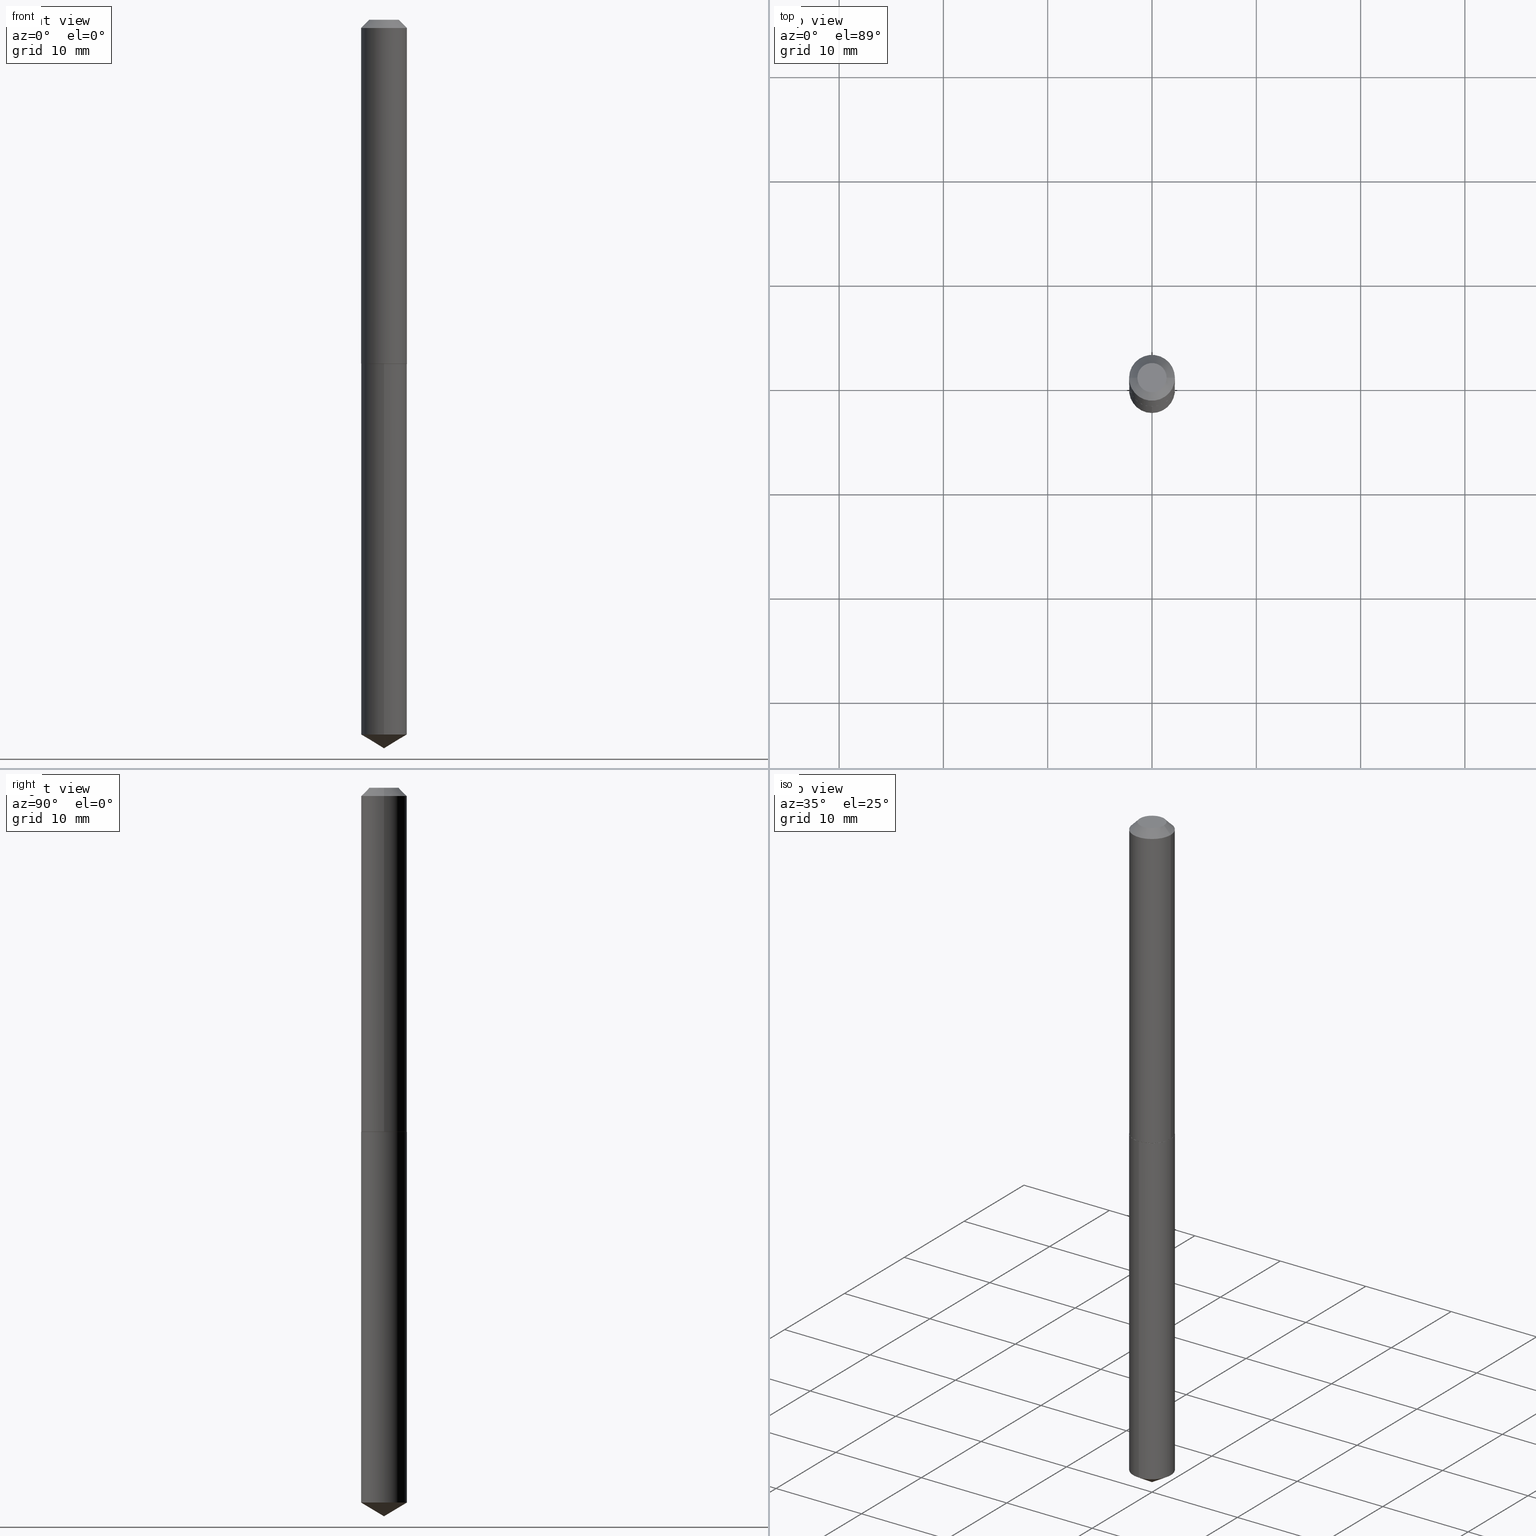
[diagram: canonical four-view strip — front | top / right | iso, engineering-drawing reading convention]
A machine part, canonical four-view strip (front | top / right | iso — engineering-drawing reading convention). The complete STEP part file that produces these views, byte-faithful:
ISO-10303-21;
HEADER;
FILE_DESCRIPTION (( 'STEP AP203' ),
    '1' );
FILE_NAME ('57150.STEP',
    '2024-04-22T22:58:40',
    ( '' ),
    ( '' ),
    'SwSTEP 2.0',
    'SolidWorks 2023',
    '' );
FILE_SCHEMA (( 'CONFIG_CONTROL_DESIGN' ));
ENDSEC;

DATA;
#1 = EDGE_CURVE ( 'NONE', #365, #335, #51, .T. ) ;
#2 = CARTESIAN_POINT ( 'NONE',  ( -1.647159550250112677E-48, 2.351707295243311413E-34, 6.735557395310372836E-20 ) ) ;
#3 = VECTOR ( 'NONE', #268, 39.37007874015748854 ) ;
#4 = DIRECTION ( 'NONE',  ( -2.445468806185136597E-29, 3.491481338843145583E-15, 1.000000000000000000 ) ) ;
#5 = ORIENTED_EDGE ( 'NONE', *, *, #255, .T. ) ;
#6 = FACE_OUTER_BOUND ( 'NONE', #157, .T. ) ;
#7 = VERTEX_POINT ( 'NONE', #257 ) ;
#8 =( CONVERSION_BASED_UNIT ( 'INCH', #307 ) LENGTH_UNIT ( ) NAMED_UNIT ( #299 ) );
#9 = DESIGN_CONTEXT ( 'detailed design', #186, 'design' ) ;
#10 = ORIENTED_EDGE ( 'NONE', *, *, #1, .F. ) ;
#11 = DIRECTION ( 'NONE',  ( -2.445468806185136597E-29, 3.491481338843145583E-15, 1.000000000000000000 ) ) ;
#12 = VECTOR ( 'NONE', #64, 39.37007874015748143 ) ;
#13 = LOCAL_TIME ( 18, 58, 40.00000000000000000, #354 ) ;
#14 = ORIENTED_EDGE ( 'NONE', *, *, #172, .F. ) ;
#15 = APPLICATION_CONTEXT ( 'configuration controlled 3d designs of mechanical parts and assemblies' ) ;
#16 = CARTESIAN_POINT ( 'NONE',  ( 3.174218510428307267E-29, -4.531942777818403125E-15, -1.297999999999999821 ) ) ;
#17 = CARTESIAN_POINT ( 'NONE',  ( 0.08600000000000025679, -5.132477568099423229E-15, -1.297999999999999821 ) ) ;
#18 = DIRECTION ( 'NONE',  ( 1.000000000000000000, -6.982962677686266711E-15, 0.000000000000000000 ) ) ;
#19 = CARTESIAN_POINT ( 'NONE',  ( 0.05524999999999998662, -5.407921915114817102E-16, 6.735557395634301012E-20 ) ) ;
#20 = DIRECTION ( 'NONE',  ( 2.445468806185136597E-29, -3.491481338843145583E-15, -1.000000000000000000 ) ) ;
#21 = DIRECTION ( 'NONE',  ( -2.445533427585269840E-29, 3.491388797320132949E-15, 1.000000000000000000 ) ) ;
#22 = AXIS2_PLACEMENT_3D ( 'NONE', #192, #185, #358 ) ;
#23 = APPROVAL_STATUS ( 'not_yet_approved' ) ;
#24 = FACE_OUTER_BOUND ( 'NONE', #155, .T. ) ;
#25 = PERSON_AND_ORGANIZATION_ROLE ( 'classification_officer' ) ;
#26 = DIRECTION ( 'NONE',  ( -2.445533427585270120E-29, 3.491388797320133343E-15, 1.000000000000000000 ) ) ;
#27 = EDGE_CURVE ( 'NONE', #193, #236, #219, .T. ) ;
#28 = CLOSED_SHELL ( 'NONE', ( #80, #179, #385, #278, #87, #246, #102, #111 ) ) ;
#29 = CONICAL_SURFACE ( 'NONE', #284, 0.08650000000000014622, 0.7853981633974311816 ) ;
#30 = APPROVAL_DATE_TIME ( #91, #248 ) ;
#31 = DIRECTION ( 'NONE',  ( 1.000000000000000000, 0.000000000000000000, 0.000000000000000000 ) ) ;
#32 = CIRCLE ( 'NONE', #159, 0.05524999999999998662 ) ;
#33 = APPROVAL_PERSON_ORGANIZATION ( #381, #248, #237 ) ;
#34 = ORIENTED_EDGE ( 'NONE', *, *, #311, .T. ) ;
#35 = DIRECTION ( 'NONE',  ( -2.445468806185136597E-29, 3.491481338843145583E-15, 1.000000000000000000 ) ) ;
#36 = ORIENTED_EDGE ( 'NONE', *, *, #302, .F. ) ;
#37 = EDGE_CURVE ( 'NONE', #127, #103, #374, .T. ) ;
#38 = ORIENTED_EDGE ( 'NONE', *, *, #27, .F. ) ;
#39 = ORIENTED_EDGE ( 'NONE', *, *, #211, .F. ) ;
#40 = CC_DESIGN_PERSON_AND_ORGANIZATION_ASSIGNMENT ( #318, #384, ( #182 ) ) ;
#41 = ORIENTED_EDGE ( 'NONE', *, *, #325, .F. ) ;
#42 = LINE ( 'NONE', #254, #242 ) ;
#43 = DIRECTION ( 'NONE',  ( -2.445533427585269840E-29, 3.491388797320132949E-15, 1.000000000000000000 ) ) ;
#44 = CONICAL_SURFACE ( 'NONE', #265, 0.08649999999999997968, 0.7853981633974452814 ) ;
#45 = APPROVAL ( #23, 'UNSPECIFIED' ) ;
#46 = DIRECTION ( 'NONE',  ( -6.982962677686267499E-15, -1.000000000000000000, 3.468864327941581987E-15 ) ) ;
#47 = CARTESIAN_POINT ( 'NONE',  ( 7.642090019328599159E-31, -1.091087918388489774E-16, -0.03125000000000019429 ) ) ;
#48 = ADVANCED_BREP_SHAPE_REPRESENTATION ( '57150', ( #324, #327, #194 ), #134 ) ;
#49 = FACE_OUTER_BOUND ( 'NONE', #339, .T. ) ;
#50 = CARTESIAN_POINT ( 'NONE',  ( -8.235797751250563386E-49, 1.175853647621655706E-34, 3.367778697655186418E-20 ) ) ;
#51 = CIRCLE ( 'NONE', #104, 0.05524999999999998662 ) ;
#52 = PERSON_AND_ORGANIZATION ( #191, #259 ) ;
#53 = SECURITY_CLASSIFICATION_LEVEL ( 'unclassified' ) ;
#54 = EDGE_CURVE ( 'NONE', #125, #127, #81, .T. ) ;
#55 = PERSON_AND_ORGANIZATION ( #191, #259 ) ;
#56 = CARTESIAN_POINT ( 'NONE',  ( 3.174218510428307267E-29, -4.531942777818403125E-15, -1.297999999999999821 ) ) ;
#57 = LINE ( 'NONE', #270, #303 ) ;
#58 = VECTOR ( 'NONE', #289, 39.37007874015748854 ) ;
#59 = AXIS2_PLACEMENT_3D ( 'NONE', #171, #109, #138 ) ;
#60 = CYLINDRICAL_SURFACE ( 'NONE', #361, 0.08650000000000004907 ) ;
#61 = EDGE_CURVE ( 'NONE', #301, #127, #173, .T. ) ;
#62 = ORIENTED_EDGE ( 'NONE', *, *, #311, .F. ) ;
#63 = EDGE_LOOP ( 'NONE', ( #101, #306, #38, #166 ) ) ;
#64 = DIRECTION ( 'NONE',  ( -0.7071067811865453523, 2.468850131082234184E-15, -0.7071067811865496822 ) ) ;
#65 = ORIENTED_EDGE ( 'NONE', *, *, #54, .F. ) ;
#66 = CC_DESIGN_PERSON_AND_ORGANIZATION_ASSIGNMENT ( #234, #147, ( #144 ) ) ;
#67 = AXIS2_PLACEMENT_3D ( 'NONE', #135, #312, #280 ) ;
#68 = ORIENTED_EDGE ( 'NONE', *, *, #167, .T. ) ;
#69 = ORIENTED_EDGE ( 'NONE', *, *, #368, .T. ) ;
#70 = APPLICATION_PROTOCOL_DEFINITION ( 'international standard', 'config_control_design', 1994, #15 ) ;
#71 = EDGE_CURVE ( 'NONE', #7, #236, #201, .T. ) ;
#72 = ORIENTED_EDGE ( 'NONE', *, *, #293, .F. ) ;
#73 = DIRECTION ( 'NONE',  ( -6.982962677686267499E-15, -1.000000000000000000, 3.468864327941581987E-15 ) ) ;
#74 = AXIS2_PLACEMENT_3D ( 'NONE', #245, #362, #222 ) ;
#75 = CARTESIAN_POINT ( 'NONE',  ( 6.598027808210516184E-29, -9.419976321584187663E-15, -2.698025556454116014 ) ) ;
#76 = CARTESIAN_POINT ( 'NONE',  ( 0.08650000000000004907, -6.040262716198624215E-16, 4.217892911063486815E-30 ) ) ;
#77 = DIRECTION ( 'NONE',  ( -0.7071067811865353603, 7.493145998870309984E-15, 0.7071067811865595631 ) ) ;
#78 = FACE_OUTER_BOUND ( 'NONE', #198, .T. ) ;
#79 = APPROVAL_ROLE ( '' ) ;
#80 = ADVANCED_FACE ( 'NONE', ( #338 ), #44, .T. ) ;
#81 = CIRCLE ( 'NONE', #317, 0.08650000000000014622 ) ;
#82 = DIRECTION ( 'NONE',  ( 1.000000000000000000, -6.982962677686266711E-15, 4.876185272392807362E-29 ) ) ;
#83 = CC_DESIGN_APPROVAL ( #45, ( #144 ) ) ;
#84 = APPLICATION_PROTOCOL_DEFINITION ( 'international standard', 'config_control_design', 1994, #186 ) ;
#85 = APPROVAL_ROLE ( '' ) ;
#86 = DIRECTION ( 'NONE',  ( 6.982962677686265922E-15, 1.000000000000000000, -3.491388797320133343E-15 ) ) ;
#87 = ADVANCED_FACE ( 'NONE', ( #146 ), #153, .T. ) ;
#88 = CARTESIAN_POINT ( 'NONE',  ( 6.725218396891717111E-29, -9.601319192630365707E-15, -2.750000000000000000 ) ) ;
#89 = AXIS2_PLACEMENT_3D ( 'NONE', #56, #292, #379 ) ;
#90 = LOCAL_TIME ( 18, 58, 40.00000000000000000, #148 ) ;
#91 = DATE_AND_TIME ( #178, #119 ) ;
#92 = CYLINDRICAL_SURFACE ( 'NONE', #383, 0.08650000000000004907 ) ;
#93 = CARTESIAN_POINT ( 'NONE',  ( -6.040262716197958614E-16, -0.08650000000000938882, -2.698025556454115570 ) ) ;
#94 = DIRECTION ( 'NONE',  ( 0.7071067811865453523, -7.319954787623248157E-15, -0.7071067811865496822 ) ) ;
#95 = EDGE_CURVE ( 'NONE', #103, #188, #97, .T. ) ;
#96 = EDGE_LOOP ( 'NONE', ( #10, #162, #360, #39 ) ) ;
#97 = CIRCLE ( 'NONE', #208, 0.08649999999999997968 ) ;
#98 = CC_DESIGN_APPROVAL ( #248, ( #276 ) ) ;
#99 = LINE ( 'NONE', #161, #296 ) ;
#100 = ORIENTED_EDGE ( 'NONE', *, *, #61, .F. ) ;
#101 = ORIENTED_EDGE ( 'NONE', *, *, #325, .T. ) ;
#102 = ADVANCED_FACE ( 'NONE', ( #24 ), #168, .T. ) ;
#103 = VERTEX_POINT ( 'NONE', #348 ) ;
#104 = AXIS2_PLACEMENT_3D ( 'NONE', #349, #309, #82 ) ;
#105 = CARTESIAN_POINT ( 'NONE',  ( 3.174218510428307267E-29, -4.531942777818403125E-15, -1.297999999999999821 ) ) ;
#106 = DIRECTION ( 'NONE',  ( -1.000000000000000000, 6.982962677686266711E-15, 0.000000000000000000 ) ) ;
#107 = DIRECTION ( 'NONE',  ( -1.000000000000000000, 6.982962677686266711E-15, 0.000000000000000000 ) ) ;
#108 = ORIENTED_EDGE ( 'NONE', *, *, #61, .T. ) ;
#109 = DIRECTION ( 'NONE',  ( -2.445468806185136597E-29, 3.491481338843145583E-15, 1.000000000000000000 ) ) ;
#110 = CARTESIAN_POINT ( 'NONE',  ( 0.08650000000000014622, -5.134223308768844733E-15, -1.297500000000000098 ) ) ;
#111 = ADVANCED_FACE ( 'NONE', ( #78 ), #206, .F. ) ;
#112 = DIRECTION ( 'NONE',  ( -5.985567269335949168E-15, -0.8571673007021112234, 0.5150380749100558209 ) ) ;
#113 = AXIS2_PLACEMENT_3D ( 'NONE', #344, #261, #106 ) ;
#114 = DIRECTION ( 'NONE',  ( 1.000000000000000000, -6.982962677686270655E-15, 0.000000000000000000 ) ) ;
#115 = APPROVAL ( #210, 'UNSPECIFIED' ) ;
#116 = APPROVAL_STATUS ( 'not_yet_approved' ) ;
#117 = FACE_OUTER_BOUND ( 'NONE', #364, .T. ) ;
#118 = CIRCLE ( 'NONE', #310, 0.08649999999999997968 ) ;
#119 = LOCAL_TIME ( 18, 58, 40.00000000000000000, #386 ) ;
#120 = SHAPE_DEFINITION_REPRESENTATION ( #180, #48 ) ;
#121 = CC_DESIGN_PERSON_AND_ORGANIZATION_ASSIGNMENT ( #291, #264, ( #345 ) ) ;
#122 = DATE_TIME_ROLE ( 'creation_date' ) ;
#123 = LINE ( 'NONE', #241, #258 ) ;
#124 = AXIS2_PLACEMENT_3D ( 'NONE', #316, #21, #175 ) ;
#125 = VERTEX_POINT ( 'NONE', #336 ) ;
#126 = CYLINDRICAL_SURFACE ( 'NONE', #74, 0.08649999999999997968 ) ;
#127 = VERTEX_POINT ( 'NONE', #196 ) ;
#128 = AXIS2_PLACEMENT_3D ( 'NONE', #16, #11, #343 ) ;
#129 = DIRECTION ( 'NONE',  ( 1.000000000000000000, -6.982962677686266711E-15, 4.876185272392807362E-29 ) ) ;
#130 = DIRECTION ( 'NONE',  ( -2.445468806185136877E-29, 3.491481338843145188E-15, 1.000000000000000000 ) ) ;
#131 = EDGE_LOOP ( 'NONE', ( #62, #226, #108, #65 ) ) ;
#132 = VERTEX_POINT ( 'NONE', #253 ) ;
#133 = CONICAL_SURFACE ( 'NONE', #352, 65.52281426576865897, 1.029744258676656088 ) ;
#134 =( GEOMETRIC_REPRESENTATION_CONTEXT ( 3 ) GLOBAL_UNCERTAINTY_ASSIGNED_CONTEXT ( ( #150 ) ) GLOBAL_UNIT_ASSIGNED_CONTEXT ( ( #8, #165, #366 ) ) REPRESENTATION_CONTEXT ( 'NONE', 'WORKASPACE' ) );
#135 = CARTESIAN_POINT ( 'NONE',  ( 3.174218510428307267E-29, -4.531942777818403125E-15, -1.297999999999999821 ) ) ;
#136 = ADVANCED_FACE ( 'NONE', ( #369 ), #235, .F. ) ;
#137 = FACE_OUTER_BOUND ( 'NONE', #63, .T. ) ;
#138 = DIRECTION ( 'NONE',  ( 1.000000000000000000, -6.982962677686266711E-15, 0.000000000000000000 ) ) ;
#139 = ORIENTED_EDGE ( 'NONE', *, *, #293, .T. ) ;
#140 = CARTESIAN_POINT ( 'NONE',  ( -0.08650000000000014622, -3.915577570716494020E-15, -1.297500000000000098 ) ) ;
#141 = CIRCLE ( 'NONE', #22, 0.08650000000000014622 ) ;
#142 = DIRECTION ( 'NONE',  ( -2.445468806185136877E-29, 3.491481338843145188E-15, 1.000000000000000000 ) ) ;
#143 = APPROVAL_PERSON_ORGANIZATION ( #320, #115, #79 ) ;
#144 = PRODUCT_DEFINITION ( 'UNKNOWN', '', #182, #9 ) ;
#145 = DATE_AND_TIME ( #212, #90 ) ;
#146 = FACE_OUTER_BOUND ( 'NONE', #131, .T. ) ;
#147 = PERSON_AND_ORGANIZATION_ROLE ( 'creator' ) ;
#148 = COORDINATED_UNIVERSAL_TIME_OFFSET ( 5, 0, .BEHIND. ) ;
#149 = COORDINATED_UNIVERSAL_TIME_OFFSET ( 5, 0, .BEHIND. ) ;
#150 = UNCERTAINTY_MEASURE_WITH_UNIT (LENGTH_MEASURE( 1.000000000000000082E-05 ), #8, 'distance_accuracy_value', 'NONE');
#151 = CARTESIAN_POINT ( 'NONE',  ( -0.08649999999999997968, 4.949174797810130250E-16, -0.03125000000000019429 ) ) ;
#152 = CC_DESIGN_PERSON_AND_ORGANIZATION_ASSIGNMENT ( #240, #25, ( #276 ) ) ;
#153 = CONICAL_SURFACE ( 'NONE', #283, 0.08650000000000014622, 0.7853981633974311816 ) ;
#154 = CARTESIAN_POINT ( 'NONE',  ( 6.725216925859491149E-29, -9.601319192630365707E-15, -2.750000000000000000 ) ) ;
#155 = EDGE_LOOP ( 'NONE', ( #277, #390, #271, #69 ) ) ;
#156 = CARTESIAN_POINT ( 'NONE',  ( -6.040262716198300782E-16, -0.08650000000000450384, -1.297999999999999599 ) ) ;
#157 = EDGE_LOOP ( 'NONE', ( #190, #274, #68, #251 ) ) ;
#158 = ORIENTED_EDGE ( 'NONE', *, *, #272, .F. ) ;
#159 = AXIS2_PLACEMENT_3D ( 'NONE', #2, #4, #129 ) ;
#160 = AXIS2_PLACEMENT_3D ( 'NONE', #340, #288, #73 ) ;
#161 = CARTESIAN_POINT ( 'NONE',  ( -0.08650000000000004907, 6.146194664324870095E-16, -4.254878853070496492E-30 ) ) ;
#162 = ORIENTED_EDGE ( 'NONE', *, *, #202, .T. ) ;
#163 = DIRECTION ( 'NONE',  ( -6.982962677686265922E-15, -1.000000000000000000, 6.316411546044540328E-15 ) ) ;
#164 = EDGE_LOOP ( 'NONE', ( #36, #224 ) ) ;
#165 =( NAMED_UNIT ( * ) PLANE_ANGLE_UNIT ( ) SI_UNIT ( $, .RADIAN. ) );
#166 = ORIENTED_EDGE ( 'NONE', *, *, #167, .F. ) ;
#167 = EDGE_CURVE ( 'NONE', #223, #193, #123, .T. ) ;
#168 = CONICAL_SURFACE ( 'NONE', #113, 0.08649999999999997968, 0.7853981633974452814 ) ;
#169 = DIRECTION ( 'NONE',  ( -2.445533427585269840E-29, 3.491388797320132949E-15, 1.000000000000000000 ) ) ;
#170 = DIRECTION ( 'NONE',  ( -2.445468806185136597E-29, 3.491481338843145583E-15, 1.000000000000000000 ) ) ;
#171 = CARTESIAN_POINT ( 'NONE',  ( 7.642090019328599159E-31, -1.091087918388489774E-16, -0.03125000000000019429 ) ) ;
#172 = EDGE_CURVE ( 'NONE', #228, #7, #382, .T. ) ;
#173 = LINE ( 'NONE', #110, #58 ) ;
#174 = VECTOR ( 'NONE', #287, 39.37007874015748143 ) ;
#175 = DIRECTION ( 'NONE',  ( -6.982962677686265922E-15, -1.000000000000000000, 3.158205773022270164E-15 ) ) ;
#176 = DIRECTION ( 'NONE',  ( 0.000000000000000000, 0.000000000000000000, 1.000000000000000000 ) ) ;
#177 = CARTESIAN_POINT ( 'NONE',  ( 3.174218510428307267E-29, -4.531942777818403125E-15, -1.297999999999999821 ) ) ;
#178 = CALENDAR_DATE ( 2024, 22, 4 ) ;
#179 = ADVANCED_FACE ( 'NONE', ( #117 ), #92, .T. ) ;
#180 = PRODUCT_DEFINITION_SHAPE ( 'NONE', 'NONE',  #144 ) ;
#181 = AXIS2_PLACEMENT_3D ( 'NONE', #75, #43, #163 ) ;
#182 = PRODUCT_DEFINITION_FORMATION_WITH_SPECIFIED_SOURCE ( 'ANY', '', #345, .NOT_KNOWN. ) ;
#183 = DATE_TIME_ROLE ( 'classification_date' ) ;
#184 = EDGE_CURVE ( 'NONE', #236, #193, #356, .T. ) ;
#185 = DIRECTION ( 'NONE',  ( -2.445468806185136597E-29, 3.491481338843145583E-15, 1.000000000000000000 ) ) ;
#186 = APPLICATION_CONTEXT ( 'configuration controlled 3d designs of mechanical parts and assemblies' ) ;
#187 = AXIS2_PLACEMENT_3D ( 'NONE', #105, #233, #286 ) ;
#188 = VERTEX_POINT ( 'NONE', #321 ) ;
#189 = EDGE_CURVE ( 'NONE', #7, #223, #118, .T. ) ;
#190 = ORIENTED_EDGE ( 'NONE', *, *, #71, .F. ) ;
#191 = PERSON ( 'UNSPECIFIED', 'UNSPECIFIED', 'UNSPECIFIED', ('UNSPECIFIED'), ('UNSPECIFIED'), ('UNSPECIFIED') ) ;
#192 = CARTESIAN_POINT ( 'NONE',  ( 3.172995776025214465E-29, -4.530197037148981621E-15, -1.297500000000000098 ) ) ;
#193 = VERTEX_POINT ( 'NONE', #156 ) ;
#194 = AXIS2_PLACEMENT_3D ( 'NONE', #285, #176, #31 ) ;
#195 = FACE_OUTER_BOUND ( 'NONE', #305, .T. ) ;
#196 = CARTESIAN_POINT ( 'NONE',  ( 0.08650000000000014622, -5.134223308768844733E-15, -1.297500000000000098 ) ) ;
#197 = ORIENTED_EDGE ( 'NONE', *, *, #189, .F. ) ;
#198 = EDGE_LOOP ( 'NONE', ( #5, #380 ) ) ;
#199 = AXIS2_PLACEMENT_3D ( 'NONE', #200, #372, #308 ) ;
#200 = CARTESIAN_POINT ( 'NONE',  ( 3.174218510428307267E-29, -4.531942777818403125E-15, -1.297999999999999821 ) ) ;
#201 = LINE ( 'NONE', #230, #174 ) ;
#202 = EDGE_CURVE ( 'NONE', #365, #103, #57, .T. ) ;
#203 = DIRECTION ( 'NONE',  ( 1.000000000000000000, -6.982962677686270655E-15, 0.000000000000000000 ) ) ;
#204 = CARTESIAN_POINT ( 'NONE',  ( 3.172995776025214465E-29, -4.530197037148981621E-15, -1.297500000000000098 ) ) ;
#205 =( LENGTH_UNIT ( ) NAMED_UNIT ( * ) SI_UNIT ( $, .METRE. ) );
#206 = PLANE ( 'NONE',  #252 ) ;
#207 = APPROVAL_DATE_TIME ( #262, #115 ) ;
#208 = AXIS2_PLACEMENT_3D ( 'NONE', #47, #170, #18 ) ;
#209 = CC_DESIGN_DATE_AND_TIME_ASSIGNMENT ( #322, #183, ( #276 ) ) ;
#210 = APPROVAL_STATUS ( 'not_yet_approved' ) ;
#211 = EDGE_CURVE ( 'NONE', #335, #188, #332, .T. ) ;
#212 = CALENDAR_DATE ( 2024, 22, 4 ) ;
#213 = CARTESIAN_POINT ( 'NONE',  ( 0.000000000000000000, 0.000000000000000000, 0.000000000000000000 ) ) ;
#214 = CALENDAR_DATE ( 2024, 22, 4 ) ;
#215 = AXIS2_PLACEMENT_3D ( 'NONE', #177, #388, #86 ) ;
#216 = EDGE_CURVE ( 'NONE', #127, #125, #141, .T. ) ;
#217 = DIRECTION ( 'NONE',  ( -2.445468806185136597E-29, 3.491481338843145583E-15, 1.000000000000000000 ) ) ;
#218 = CARTESIAN_POINT ( 'NONE',  ( 6.146194664325526821E-16, 0.08649999999999545552, -1.298000000000000265 ) ) ;
#219 = CIRCLE ( 'NONE', #124, 0.08649999999999997968 ) ;
#220 = ORIENTED_EDGE ( 'NONE', *, *, #184, .T. ) ;
#221 = ORIENTED_EDGE ( 'NONE', *, *, #272, .T. ) ;
#222 = DIRECTION ( 'NONE',  ( -6.982962677686265922E-15, -1.000000000000000000, 3.158205773022270164E-15 ) ) ;
#223 = VERTEX_POINT ( 'NONE', #93 ) ;
#224 = ORIENTED_EDGE ( 'NONE', *, *, #346, .F. ) ;
#225 = DIRECTION ( 'NONE',  ( -1.000000000000000000, 6.982962677686265922E-15, -4.876176775795935793E-29 ) ) ;
#226 = ORIENTED_EDGE ( 'NONE', *, *, #346, .T. ) ;
#227 = DIRECTION ( 'NONE',  ( 1.000000000000000000, -6.982962677686270655E-15, 0.000000000000000000 ) ) ;
#228 = VERTEX_POINT ( 'NONE', #154 ) ;
#229 = FACE_OUTER_BOUND ( 'NONE', #330, .T. ) ;
#230 = CARTESIAN_POINT ( 'NONE',  ( 6.146194664325182681E-16, 0.08649999999999545552, -1.298000000000000265 ) ) ;
#231 = ORIENTED_EDGE ( 'NONE', *, *, #172, .T. ) ;
#232 = CARTESIAN_POINT ( 'NONE',  ( -8.955571055843717225E-28, 1.278548125514701138E-13, 36.62007874015748143 ) ) ;
#233 = DIRECTION ( 'NONE',  ( -2.445468806185136597E-29, 3.491481338843145583E-15, 1.000000000000000000 ) ) ;
#234 = PERSON_AND_ORGANIZATION ( #191, #259 ) ;
#235 = PLANE ( 'NONE',  #215 ) ;
#236 = VERTEX_POINT ( 'NONE', #218 ) ;
#237 = APPROVAL_ROLE ( '' ) ;
#238 = CONICAL_SURFACE ( 'NONE', #160, 65.52281426576865897, 1.029744258676656088 ) ;
#239 = PRODUCT_RELATED_PRODUCT_CATEGORY ( 'detail', '', ( #345 ) ) ;
#240 = PERSON_AND_ORGANIZATION ( #191, #259 ) ;
#241 = CARTESIAN_POINT ( 'NONE',  ( -6.040262716198300782E-16, -0.08650000000000450384, -1.297999999999999599 ) ) ;
#242 = VECTOR ( 'NONE', #112, 39.37007874015748143 ) ;
#243 = LOCAL_TIME ( 18, 58, 40.00000000000000000, #149 ) ;
#244 = ORIENTED_EDGE ( 'NONE', *, *, #54, .T. ) ;
#245 = CARTESIAN_POINT ( 'NONE',  ( 3.174218510428307267E-29, -4.531942777818403125E-15, -1.297999999999999821 ) ) ;
#246 = ADVANCED_FACE ( 'NONE', ( #328 ), #60, .T. ) ;
#247 = EDGE_LOOP ( 'NONE', ( #158, #244, #331, #315 ) ) ;
#248 = APPROVAL ( #116, 'UNSPECIFIED' ) ;
#249 = ORIENTED_EDGE ( 'NONE', *, *, #302, .T. ) ;
#250 = FACE_OUTER_BOUND ( 'NONE', #164, .T. ) ;
#251 = ORIENTED_EDGE ( 'NONE', *, *, #184, .F. ) ;
#252 = AXIS2_PLACEMENT_3D ( 'NONE', #50, #367, #225 ) ;
#253 = CARTESIAN_POINT ( 'NONE',  ( -0.08600000000000025679, -3.918226797890604432E-15, -1.297999999999999821 ) ) ;
#254 = CARTESIAN_POINT ( 'NONE',  ( 6.725049168704744971E-29, -9.601559430424107272E-15, -2.750000000000000000 ) ) ;
#255 = EDGE_CURVE ( 'NONE', #335, #365, #32, .T. ) ;
#256 = LINE ( 'NONE', #140, #342 ) ;
#257 = CARTESIAN_POINT ( 'NONE',  ( 6.146194664325522877E-16, 0.08649999999999052891, -2.698025556454116458 ) ) ;
#258 = VECTOR ( 'NONE', #26, 39.37007874015748143 ) ;
#259 = ORGANIZATION ( 'UNSPECIFIED', 'UNSPECIFIED', '' ) ;
#260 = CYLINDRICAL_SURFACE ( 'NONE', #67, 0.08649999999999997968 ) ;
#261 = DIRECTION ( 'NONE',  ( 2.445468806185136597E-29, -3.491481338843145583E-15, -1.000000000000000000 ) ) ;
#262 = DATE_AND_TIME ( #269, #243 ) ;
#263 = ADVANCED_FACE ( 'NONE', ( #6 ), #126, .T. ) ;
#264 = PERSON_AND_ORGANIZATION_ROLE ( 'design_owner' ) ;
#265 = AXIS2_PLACEMENT_3D ( 'NONE', #341, #20, #107 ) ;
#266 = LOCAL_TIME ( 18, 58, 40.00000000000000000, #350 ) ;
#267 = DATE_AND_TIME ( #214, #266 ) ;
#268 = DIRECTION ( 'NONE',  ( 6.090539988449786324E-15, 0.8571673007021148871, 0.5150380749100498257 ) ) ;
#269 = CALENDAR_DATE ( 2024, 22, 4 ) ;
#270 = CARTESIAN_POINT ( 'NONE',  ( 0.08649999999999997968, -7.025418686460863426E-16, -0.03125000000000019429 ) ) ;
#271 = ORIENTED_EDGE ( 'NONE', *, *, #211, .T. ) ;
#272 = EDGE_CURVE ( 'NONE', #125, #188, #99, .T. ) ;
#273 = DIRECTION ( 'NONE',  ( 1.000000000000000000, -6.982962677686266711E-15, 4.876176775795935793E-29 ) ) ;
#274 = ORIENTED_EDGE ( 'NONE', *, *, #189, .T. ) ;
#275 = DIRECTION ( 'NONE',  ( -6.982962677686265922E-15, -1.000000000000000000, 6.316411546044540328E-15 ) ) ;
#276 = SECURITY_CLASSIFICATION ( '', '', #53 ) ;
#277 = ORIENTED_EDGE ( 'NONE', *, *, #202, .F. ) ;
#278 = ADVANCED_FACE ( 'NONE', ( #250 ), #282, .F. ) ;
#279 = ORIENTED_EDGE ( 'NONE', *, *, #216, .F. ) ;
#280 = DIRECTION ( 'NONE',  ( -6.982962677686265922E-15, -1.000000000000000000, 3.158205773022270164E-15 ) ) ;
#281 = ORIENTED_EDGE ( 'NONE', *, *, #216, .T. ) ;
#282 = PLANE ( 'NONE',  #199 ) ;
#283 = AXIS2_PLACEMENT_3D ( 'NONE', #313, #314, #114 ) ;
#284 = AXIS2_PLACEMENT_3D ( 'NONE', #377, #347, #203 ) ;
#285 = CARTESIAN_POINT ( 'NONE',  ( 0.000000000000000000, 0.000000000000000000, 0.000000000000000000 ) ) ;
#286 = DIRECTION ( 'NONE',  ( 1.000000000000000000, -6.982962677686265922E-15, 0.000000000000000000 ) ) ;
#287 = DIRECTION ( 'NONE',  ( -2.445533427585270120E-29, 3.491388797320133343E-15, 1.000000000000000000 ) ) ;
#288 = DIRECTION ( 'NONE',  ( -2.445533427585269840E-29, 3.491388797320132949E-15, 1.000000000000000000 ) ) ;
#289 = DIRECTION ( 'NONE',  ( 0.7071067811865353603, -2.468850131082130054E-15, 0.7071067811865595631 ) ) ;
#290 = VECTOR ( 'NONE', #142, 39.37007874015748143 ) ;
#291 = PERSON_AND_ORGANIZATION ( #191, #259 ) ;
#292 = DIRECTION ( 'NONE',  ( -2.445533427585269840E-29, 3.491388797320132949E-15, 1.000000000000000000 ) ) ;
#293 = EDGE_CURVE ( 'NONE', #228, #223, #42, .T. ) ;
#294 = CIRCLE ( 'NONE', #128, 0.08600000000000025679 ) ;
#295 = MECHANICAL_CONTEXT ( 'NONE', #15, 'mechanical' ) ;
#296 = VECTOR ( 'NONE', #130, 39.37007874015748143 ) ;
#297 = ADVANCED_FACE ( 'NONE', ( #195 ), #133, .T. ) ;
#298 = CARTESIAN_POINT ( 'NONE',  ( 0.000000000000000000, 0.000000000000000000, 0.000000000000000000 ) ) ;
#299 = DIMENSIONAL_EXPONENTS ( 1.000000000000000000, 0.000000000000000000, 0.000000000000000000, 0.000000000000000000, 0.000000000000000000, 0.000000000000000000, 0.000000000000000000 ) ;
#300 = EDGE_LOOP ( 'NONE', ( #337, #220 ) ) ;
#301 = VERTEX_POINT ( 'NONE', #17 ) ;
#302 = EDGE_CURVE ( 'NONE', #301, #132, #294, .T. ) ;
#303 = VECTOR ( 'NONE', #94, 39.37007874015748143 ) ;
#304 = APPROVAL_PERSON_ORGANIZATION ( #55, #45, #85 ) ;
#305 = EDGE_LOOP ( 'NONE', ( #14, #139, #197 ) ) ;
#306 = ORIENTED_EDGE ( 'NONE', *, *, #71, .T. ) ;
#307 = LENGTH_MEASURE_WITH_UNIT ( LENGTH_MEASURE( 0.02539999999999999897 ), #205 );
#308 = DIRECTION ( 'NONE',  ( 1.000000000000000000, -6.982962677686265922E-15, 4.876176775795935793E-29 ) ) ;
#309 = DIRECTION ( 'NONE',  ( -2.445468806185136597E-29, 3.491481338843145583E-15, 1.000000000000000000 ) ) ;
#310 = AXIS2_PLACEMENT_3D ( 'NONE', #351, #359, #275 ) ;
#311 = EDGE_CURVE ( 'NONE', #132, #125, #256, .T. ) ;
#312 = DIRECTION ( 'NONE',  ( -2.445533427585269840E-29, 3.491388797320132949E-15, 1.000000000000000000 ) ) ;
#313 = CARTESIAN_POINT ( 'NONE',  ( 3.172995776025214465E-29, -4.530197037148981621E-15, -1.297500000000000098 ) ) ;
#314 = DIRECTION ( 'NONE',  ( -2.445468806185136597E-29, 3.491481338843145583E-15, 1.000000000000000000 ) ) ;
#315 = ORIENTED_EDGE ( 'NONE', *, *, #368, .F. ) ;
#316 = CARTESIAN_POINT ( 'NONE',  ( 3.174218510428307267E-29, -4.531942777818403125E-15, -1.297999999999999821 ) ) ;
#317 = AXIS2_PLACEMENT_3D ( 'NONE', #204, #371, #227 ) ;
#318 = PERSON_AND_ORGANIZATION ( #191, #259 ) ;
#319 = ADVANCED_FACE ( 'NONE', ( #137 ), #260, .T. ) ;
#320 = PERSON_AND_ORGANIZATION ( #191, #259 ) ;
#321 = CARTESIAN_POINT ( 'NONE',  ( -0.08649999999999997968, -1.705033448061427563E-15, -0.03125000000000019429 ) ) ;
#322 = DATE_AND_TIME ( #355, #13 ) ;
#323 = DIRECTION ( 'NONE',  ( 1.000000000000000000, -6.982962677686266711E-15, 4.876176775795935793E-29 ) ) ;
#324 = MANIFOLD_SOLID_BREP ( 'Body-Move/Copy2[1]', #326 ) ;
#325 = EDGE_CURVE ( 'NONE', #223, #7, #375, .T. ) ;
#326 = CLOSED_SHELL ( 'NONE', ( #319, #373, #297, #263, #136 ) ) ;
#327 = MANIFOLD_SOLID_BREP ( 'Body-Move/Copy2[2]', #28 ) ;
#328 = FACE_OUTER_BOUND ( 'NONE', #247, .T. ) ;
#329 = ORIENTED_EDGE ( 'NONE', *, *, #37, .F. ) ;
#330 = EDGE_LOOP ( 'NONE', ( #72, #231, #41 ) ) ;
#331 = ORIENTED_EDGE ( 'NONE', *, *, #37, .T. ) ;
#332 = LINE ( 'NONE', #151, #12 ) ;
#333 = CIRCLE ( 'NONE', #187, 0.08600000000000025679 ) ;
#334 = CIRCLE ( 'NONE', #59, 0.08649999999999997968 ) ;
#335 = VERTEX_POINT ( 'NONE', #370 ) ;
#336 = CARTESIAN_POINT ( 'NONE',  ( -0.08650000000000014622, -3.915577570716494020E-15, -1.297500000000000098 ) ) ;
#337 = ORIENTED_EDGE ( 'NONE', *, *, #27, .T. ) ;
#338 = FACE_OUTER_BOUND ( 'NONE', #96, .T. ) ;
#339 = EDGE_LOOP ( 'NONE', ( #249, #34, #279, #100 ) ) ;
#340 = CARTESIAN_POINT ( 'NONE',  ( -8.955571055843717225E-28, 1.278548125514701138E-13, 36.62007874015748143 ) ) ;
#341 = CARTESIAN_POINT ( 'NONE',  ( 7.642090019328599159E-31, -1.091087918388489774E-16, -0.03125000000000019429 ) ) ;
#342 = VECTOR ( 'NONE', #77, 39.37007874015748854 ) ;
#343 = DIRECTION ( 'NONE',  ( 1.000000000000000000, -6.982962677686265922E-15, 0.000000000000000000 ) ) ;
#344 = CARTESIAN_POINT ( 'NONE',  ( 7.642090019328599159E-31, -1.091087918388489774E-16, -0.03125000000000019429 ) ) ;
#345 = PRODUCT ( '57150', '57150', '', ( #295 ) ) ;
#346 = EDGE_CURVE ( 'NONE', #132, #301, #333, .T. ) ;
#347 = DIRECTION ( 'NONE',  ( -2.445468806185136597E-29, 3.491481338843145583E-15, 1.000000000000000000 ) ) ;
#348 = CARTESIAN_POINT ( 'NONE',  ( 0.08649999999999997968, -7.131350634587109305E-16, -0.03125000000000019429 ) ) ;
#349 = CARTESIAN_POINT ( 'NONE',  ( -1.647159550250112677E-48, 2.351707295243311413E-34, 6.735557395310372836E-20 ) ) ;
#350 = COORDINATED_UNIVERSAL_TIME_OFFSET ( 5, 0, .BEHIND. ) ;
#351 = CARTESIAN_POINT ( 'NONE',  ( 6.598027808210516184E-29, -9.419976321584187663E-15, -2.698025556454116014 ) ) ;
#352 = AXIS2_PLACEMENT_3D ( 'NONE', #232, #169, #46 ) ;
#353 = CC_DESIGN_SECURITY_CLASSIFICATION ( #276, ( #182 ) ) ;
#354 = COORDINATED_UNIVERSAL_TIME_OFFSET ( 5, 0, .BEHIND. ) ;
#355 = CALENDAR_DATE ( 2024, 22, 4 ) ;
#356 = CIRCLE ( 'NONE', #89, 0.08649999999999997968 ) ;
#357 = CC_DESIGN_PERSON_AND_ORGANIZATION_ASSIGNMENT ( #52, #387, ( #182 ) ) ;
#358 = DIRECTION ( 'NONE',  ( 1.000000000000000000, -6.982962677686270655E-15, 0.000000000000000000 ) ) ;
#359 = DIRECTION ( 'NONE',  ( -2.445533427585269840E-29, 3.491388797320132949E-15, 1.000000000000000000 ) ) ;
#360 = ORIENTED_EDGE ( 'NONE', *, *, #95, .T. ) ;
#361 = AXIS2_PLACEMENT_3D ( 'NONE', #298, #35, #273 ) ;
#362 = DIRECTION ( 'NONE',  ( -2.445533427585269840E-29, 3.491388797320132949E-15, 1.000000000000000000 ) ) ;
#363 = ORIENTED_EDGE ( 'NONE', *, *, #95, .F. ) ;
#364 = EDGE_LOOP ( 'NONE', ( #281, #221, #363, #329 ) ) ;
#365 = VERTEX_POINT ( 'NONE', #19 ) ;
#366 =( NAMED_UNIT ( * ) SI_UNIT ( $, .STERADIAN. ) SOLID_ANGLE_UNIT ( ) );
#367 = DIRECTION ( 'NONE',  ( 2.438088387897960049E-29, -3.491481338843145188E-15, -1.000000000000000000 ) ) ;
#368 = EDGE_CURVE ( 'NONE', #188, #103, #334, .T. ) ;
#369 = FACE_OUTER_BOUND ( 'NONE', #300, .T. ) ;
#370 = CARTESIAN_POINT ( 'NONE',  ( -0.05524999999999998662, 4.403630838615897073E-16, 6.735557395021508622E-20 ) ) ;
#371 = DIRECTION ( 'NONE',  ( -2.445468806185136597E-29, 3.491481338843145583E-15, 1.000000000000000000 ) ) ;
#372 = DIRECTION ( 'NONE',  ( -2.438088387897960049E-29, 3.491481338843145188E-15, 1.000000000000000000 ) ) ;
#373 = ADVANCED_FACE ( 'NONE', ( #229 ), #238, .T. ) ;
#374 = LINE ( 'NONE', #76, #290 ) ;
#375 = CIRCLE ( 'NONE', #181, 0.08649999999999997968 ) ;
#376 = CC_DESIGN_APPROVAL ( #115, ( #182 ) ) ;
#377 = CARTESIAN_POINT ( 'NONE',  ( 3.172995776025214465E-29, -4.530197037148981621E-15, -1.297500000000000098 ) ) ;
#378 = APPROVAL_DATE_TIME ( #145, #45 ) ;
#379 = DIRECTION ( 'NONE',  ( -6.982962677686265922E-15, -1.000000000000000000, 3.158205773022270164E-15 ) ) ;
#380 = ORIENTED_EDGE ( 'NONE', *, *, #1, .T. ) ;
#381 = PERSON_AND_ORGANIZATION ( #191, #259 ) ;
#382 = LINE ( 'NONE', #88, #3 ) ;
#383 = AXIS2_PLACEMENT_3D ( 'NONE', #213, #217, #323 ) ;
#384 = PERSON_AND_ORGANIZATION_ROLE ( 'creator' ) ;
#385 = ADVANCED_FACE ( 'NONE', ( #49 ), #29, .T. ) ;
#386 = COORDINATED_UNIVERSAL_TIME_OFFSET ( 5, 0, .BEHIND. ) ;
#387 = PERSON_AND_ORGANIZATION_ROLE ( 'design_supplier' ) ;
#388 = DIRECTION ( 'NONE',  ( 2.445533427585269279E-29, -3.491388797320133343E-15, -1.000000000000000000 ) ) ;
#389 = CC_DESIGN_DATE_AND_TIME_ASSIGNMENT ( #267, #122, ( #144 ) ) ;
#390 = ORIENTED_EDGE ( 'NONE', *, *, #255, .F. ) ;
ENDSEC;
END-ISO-10303-21;
